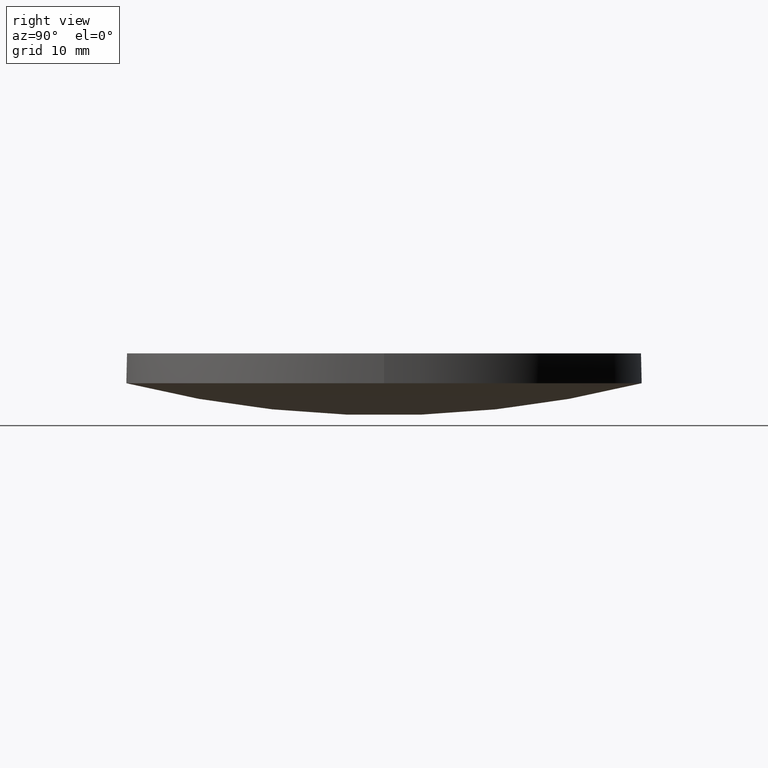
[diagram: clean part render]
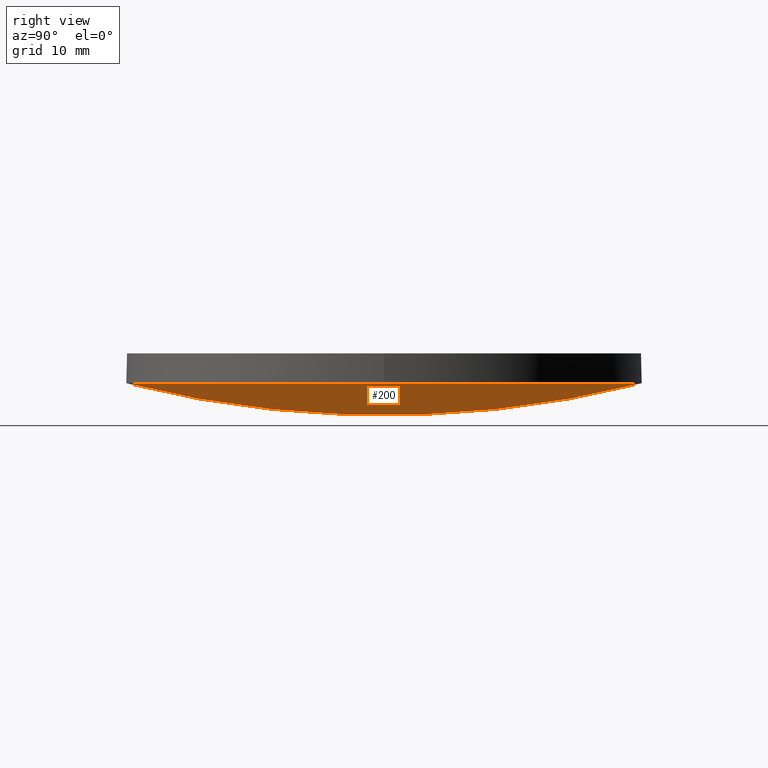
[diagram: same view with one face highlighted and labeled with its STEP entity id]
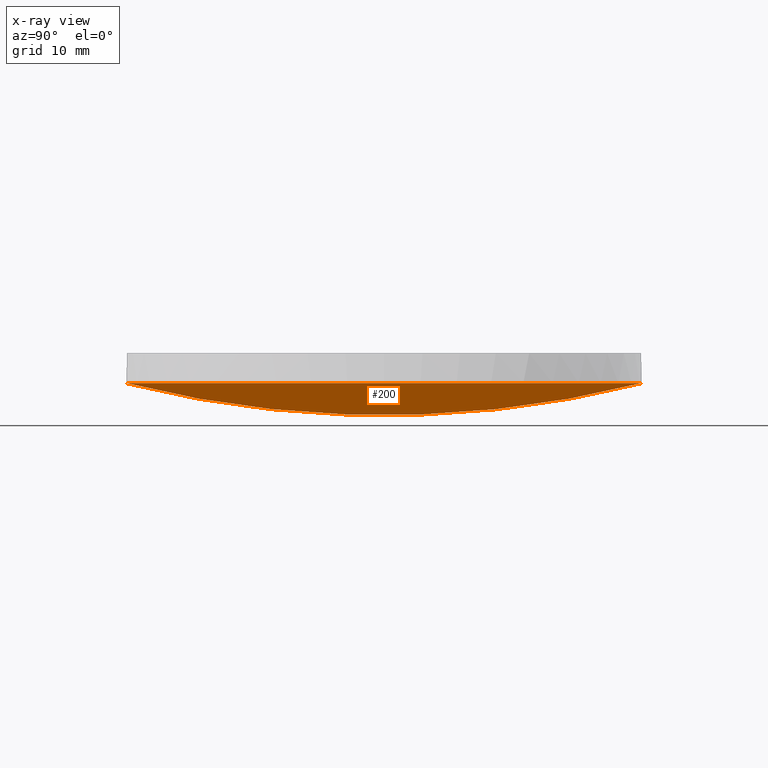
[diagram: x-ray of the same camera — body ghosted, the highlighted face saturated]
A machine part, right view. The second image highlights one B-rep face of the part: STEP entity #200.
The next image is the same camera in x-ray: the body ghosted, the highlighted face saturated — about 0% of this face is hidden behind the body in this view.
In plain terms, the highlighted face is a freeform B-spline surface patch.
Its self-contained STEP definition (entity closure, byte-faithful):
#3 = CARTESIAN_POINT ( 'NONE',  ( 25.82053995099668200, 8.748063978977391700, 2.129455122167295900 ) ) ;
#5 = EDGE_CURVE ( 'NONE', #98, #102, #193, .T. ) ;
#26 = VERTEX_POINT ( 'NONE', #46 ) ;
#36 = CARTESIAN_POINT ( 'NONE',  ( 8.358203137555921800, 25.69844065608493700, 3.234681865602604800 ) ) ;
#43 = DIRECTION ( 'NONE',  ( 1.000000000000000000, 0.0000000000000000000, -2.832073977186420200E-016 ) ) ;
#46 = CARTESIAN_POINT ( 'NONE',  ( 25.39999999999999900, 4.884981308350691100E-015, 3.158814409218349900 ) ) ;
#50 = DIRECTION ( 'NONE',  ( 1.000000000000000000, 0.0000000000000000000, 0.0000000000000000000 ) ) ;
#54 = CARTESIAN_POINT ( 'NONE',  ( 17.37038757358133600, 8.748063978977391700, -0.01868238477917933500 ) ) ;
#55 = EDGE_LOOP ( 'NONE', ( #78, #87, #151 ) ) ;
#60 = CIRCLE ( 'NONE', #160, 25.39999999999999900 ) ;
#63 = CIRCLE ( 'NONE', #168, 25.39999999999999900 ) ;
#68 = CARTESIAN_POINT ( 'NONE',  ( 9.992007221626412800E-016, 4.884981308350691100E-015, 3.158814409218349900 ) ) ;
#78 = ORIENTED_EDGE ( 'NONE', *, *, #132, .T. ) ;
#83 = CARTESIAN_POINT ( 'NONE',  ( -2.136858017711129700E-014, 25.39999999999998400, 3.158814409218356500 ) ) ;
#84 = CARTESIAN_POINT ( 'NONE',  ( 25.82053995099668200, -8.748063978977395300, 2.129455122167297300 ) ) ;
#87 = ORIENTED_EDGE ( 'NONE', *, *, #5, .T. ) ;
#88 = CARTESIAN_POINT ( 'NONE',  ( 24.75229872241546800, -25.69844065608494400, 6.331607511461976800 ) ) ;
#95 = AXIS2_PLACEMENT_3D ( 'NONE', #99, #43, #135 ) ;
#98 = VERTEX_POINT ( 'NONE', #190 ) ;
#99 = CARTESIAN_POINT ( 'NONE',  ( 7.105427357601000300E-015, -7.105427357601000300E-015, 103.7000000000000000 ) ) ;
#100 = CARTESIAN_POINT ( 'NONE',  ( -2.257502662469695600E-014, 8.748063978977391700, -1.101125328599609900 ) ) ;
#102 = VERTEX_POINT ( 'NONE', #83 ) ;
#103 = CARTESIAN_POINT ( 'NONE',  ( -2.257502662469695600E-014, -8.748063978977395300, -1.101125328599608300 ) ) ;
#122 = CARTESIAN_POINT ( 'NONE',  ( 8.718920228462247100, -8.748063978977395300, -1.101125328599610500 ) ) ;
#123 = CARTESIAN_POINT ( 'NONE',  ( 24.75229872241546800, 25.69844065608494100, 6.331607511461976800 ) ) ;
#124 = CARTESIAN_POINT ( 'NONE',  ( 16.65174403639154100, 25.69844065608493700, 4.272342237781612300 ) ) ;
#128 = CARTESIAN_POINT ( 'NONE',  ( -2.134709395221717500E-014, 25.69844065608494100, 3.234681865602606600 ) ) ;
#132 = EDGE_CURVE ( 'NONE', #26, #98, #60, .T. ) ;
#133 = EDGE_CURVE ( 'NONE', #102, #26, #63, .T. ) ;
#135 = DIRECTION ( 'NONE',  ( 0.0000000000000000000, -1.000000000000000000, 0.0000000000000000000 ) ) ;
#140 = DIRECTION ( 'NONE',  ( -0.0000000000000000000, -0.0000000000000000000, -1.000000000000000000 ) ) ;
#141 = CARTESIAN_POINT ( 'NONE',  ( -2.134709395221717500E-014, -25.69844065608494400, 3.234681865602606600 ) ) ;
#151 = ORIENTED_EDGE ( 'NONE', *, *, #133, .T. ) ;
#152 =( BOUNDED_SURFACE ( )  B_SPLINE_SURFACE ( 3, 3, ( 
 ( #141, #177, #212, #88 ),
 ( #103, #122, #235, #84 ),
 ( #100, #219, #54, #3 ),
 ( #128, #36, #124, #123 ) ),
 .UNSPECIFIED., .F., .F., .T. ) 
 B_SPLINE_SURFACE_WITH_KNOTS ( ( 4, 4 ),
 ( 4, 4 ),
 ( 0.0000000000000000000, 1.000000000000000000 ),
 ( 0.0000000000000000000, 1.000000000000000000 ),
 .UNSPECIFIED. ) 
 GEOMETRIC_REPRESENTATION_ITEM ( )  RATIONAL_B_SPLINE_SURFACE ( (
 ( 1.000000000000000000, 0.9948424130835996600, 0.9948424130835996600, 1.000000000000000000),
 ( 0.9792048738951938400, 0.9741545396491165800, 0.9741545396491165800, 0.9792048738951938400),
 ( 0.9792048738951938400, 0.9741545396491165800, 0.9741545396491165800, 0.9792048738951938400),
 ( 1.000000000000000000, 0.9948424130835996600, 0.9948424130835996600, 1.000000000000000000) ) ) 
 REPRESENTATION_ITEM ( '' )  SURFACE ( )  );
#154 = FACE_OUTER_BOUND ( 'NONE', #55, .T. ) ;
#160 = AXIS2_PLACEMENT_3D ( 'NONE', #68, #140, #231 ) ;
#168 = AXIS2_PLACEMENT_3D ( 'NONE', #192, #232, #50 ) ;
#177 = CARTESIAN_POINT ( 'NONE',  ( 8.358203137555921800, -25.69844065608494100, 3.234681865602604800 ) ) ;
#190 = CARTESIAN_POINT ( 'NONE',  ( -2.136858017711129700E-014, -25.39999999999998800, 3.158814409218356500 ) ) ;
#192 = CARTESIAN_POINT ( 'NONE',  ( 9.992007221626412800E-016, 4.884981308350691100E-015, 3.158814409218349900 ) ) ;
#193 = CIRCLE ( 'NONE', #95, 103.6999999999999900 ) ;
#200 = ADVANCED_FACE ( 'NONE', ( #154 ), #152, .T. ) ;
#212 = CARTESIAN_POINT ( 'NONE',  ( 16.65174403639154100, -25.69844065608494100, 4.272342237781612300 ) ) ;
#219 = CARTESIAN_POINT ( 'NONE',  ( 8.718920228462247100, 8.748063978977391700, -1.101125328599612100 ) ) ;
#231 = DIRECTION ( 'NONE',  ( 1.000000000000000000, 0.0000000000000000000, 0.0000000000000000000 ) ) ;
#232 = DIRECTION ( 'NONE',  ( -0.0000000000000000000, -0.0000000000000000000, -1.000000000000000000 ) ) ;
#235 = CARTESIAN_POINT ( 'NONE',  ( 17.37038757358133600, -8.748063978977395300, -0.01868238477917803800 ) ) ;